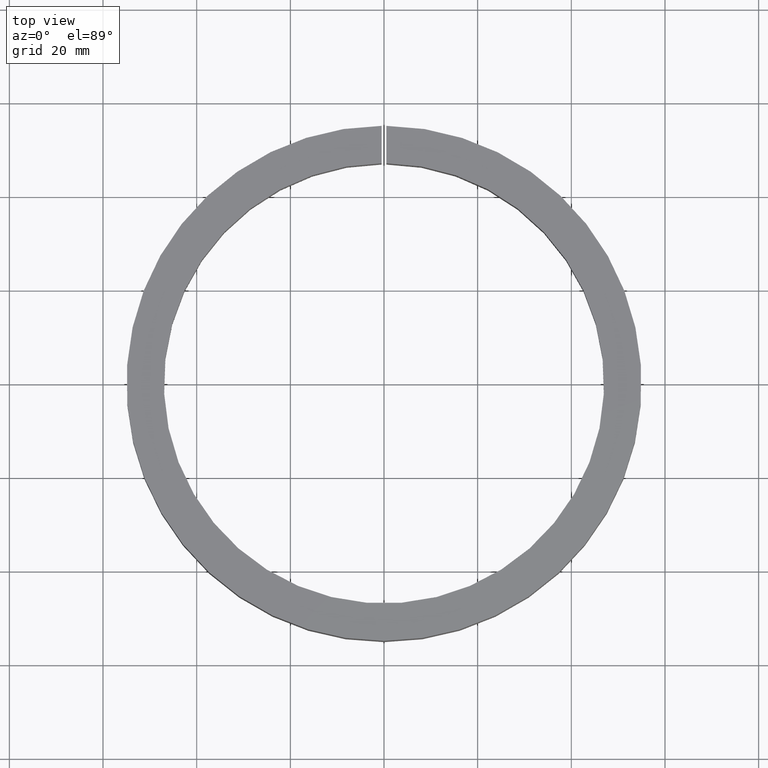
[diagram: clean part render]
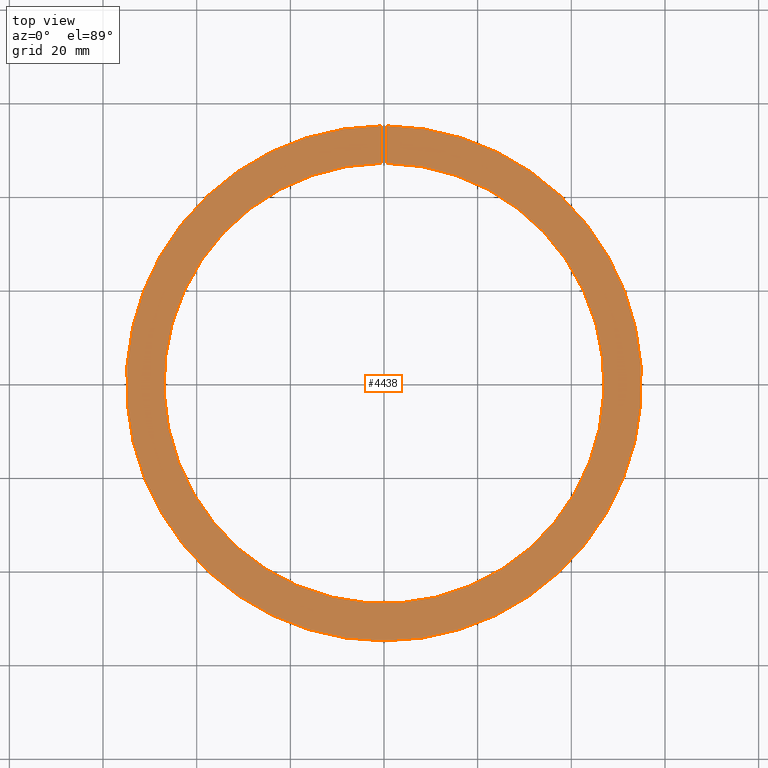
[diagram: same view with one face highlighted and labeled with its STEP entity id]
A machine part, top view. The second image highlights one B-rep face of the part: STEP entity #4438.
In plain terms, the highlighted planar face has unit normal (-0, 0, -1).
Its self-contained STEP definition (entity closure, byte-faithful):
#136 = DIRECTION ( 'NONE',  ( 0.0000000000000000000, 1.000000000000000000, -0.0000000000000000000 ) ) ;
#365 = DIRECTION ( 'NONE',  ( -1.000000000000000000, 0.0000000000000000000, 0.0000000000000000000 ) ) ;
#575 = DIRECTION ( 'NONE',  ( -0.0000000000000000000, -0.0000000000000000000, -1.000000000000000000 ) ) ;
#764 = CARTESIAN_POINT ( 'NONE',  ( -0.5000000000000000000, 0.0000000000000000000, 8.000000000000001800 ) ) ;
#1016 = LINE ( 'NONE', #5862, #3234 ) ;
#1076 = CARTESIAN_POINT ( 'NONE',  ( -0.5000000000000000000, 46.99734035027940100, 8.000000000000001800 ) ) ;
#1564 = CARTESIAN_POINT ( 'NONE',  ( 0.0000000000000000000, 0.0000000000000000000, 8.000000000000001800 ) ) ;
#2236 = VECTOR ( 'NONE', #3444, 1000.000000000000000 ) ;
#2564 = DIRECTION ( 'NONE',  ( -1.000000000000000000, 0.0000000000000000000, 0.0000000000000000000 ) ) ;
#2883 = AXIS2_PLACEMENT_3D ( 'NONE', #4982, #5932, #365 ) ;
#3053 = AXIS2_PLACEMENT_3D ( 'NONE', #5944, #10491, #8747 ) ;
#3234 = VECTOR ( 'NONE', #136, 1000.000000000000000 ) ;
#3341 = CIRCLE ( 'NONE', #3053, 55.00000000000000000 ) ;
#3444 = DIRECTION ( 'NONE',  ( 0.0000000000000000000, 1.000000000000000000, -0.0000000000000000000 ) ) ;
#3867 = EDGE_CURVE ( 'NONE', #4258, #6026, #1016, .T. ) ;
#4258 = VERTEX_POINT ( 'NONE', #9649 ) ;
#4380 = ORIENTED_EDGE ( 'NONE', *, *, #9188, .T. ) ;
#4438 = ADVANCED_FACE ( 'NONE', ( #6446 ), #10642, .F. ) ;
#4506 = EDGE_LOOP ( 'NONE', ( #10134, #7812, #5454, #4380 ) ) ;
#4982 = CARTESIAN_POINT ( 'NONE',  ( 0.0000000000000000000, -47.00000000000000000, 8.000000000000000000 ) ) ;
#5329 = AXIS2_PLACEMENT_3D ( 'NONE', #1564, #575, #2564 ) ;
#5454 = ORIENTED_EDGE ( 'NONE', *, *, #11662, .T. ) ;
#5862 = CARTESIAN_POINT ( 'NONE',  ( 0.5000000000000000000, 0.0000000000000000000, 8.000000000000001800 ) ) ;
#5932 = DIRECTION ( 'NONE',  ( -0.0000000000000000000, 0.0000000000000000000, -1.000000000000000000 ) ) ;
#5944 = CARTESIAN_POINT ( 'NONE',  ( 0.0000000000000000000, 0.0000000000000000000, 8.000000000000000000 ) ) ;
#5990 = EDGE_CURVE ( 'NONE', #6026, #10108, #3341, .T. ) ;
#6026 = VERTEX_POINT ( 'NONE', #6837 ) ;
#6446 = FACE_OUTER_BOUND ( 'NONE', #4506, .T. ) ;
#6837 = CARTESIAN_POINT ( 'NONE',  ( 0.5000000000000000000, 54.99772722576815900, 8.000000000000000000 ) ) ;
#7646 = VERTEX_POINT ( 'NONE', #1076 ) ;
#7812 = ORIENTED_EDGE ( 'NONE', *, *, #3867, .F. ) ;
#8747 = DIRECTION ( 'NONE',  ( -1.000000000000000000, 0.0000000000000000000, 0.0000000000000000000 ) ) ;
#9122 = CARTESIAN_POINT ( 'NONE',  ( -0.5000000000000000000, 54.99772722576815900, 8.000000000000001800 ) ) ;
#9188 = EDGE_CURVE ( 'NONE', #7646, #10108, #9800, .T. ) ;
#9649 = CARTESIAN_POINT ( 'NONE',  ( 0.5000000000000000000, 46.99734035027940100, 8.000000000000001800 ) ) ;
#9800 = LINE ( 'NONE', #764, #2236 ) ;
#10108 = VERTEX_POINT ( 'NONE', #9122 ) ;
#10134 = ORIENTED_EDGE ( 'NONE', *, *, #5990, .F. ) ;
#10491 = DIRECTION ( 'NONE',  ( -0.0000000000000000000, -0.0000000000000000000, -1.000000000000000000 ) ) ;
#10578 = CIRCLE ( 'NONE', #5329, 47.00000000000000000 ) ;
#10642 = PLANE ( 'NONE',  #2883 ) ;
#11662 = EDGE_CURVE ( 'NONE', #4258, #7646, #10578, .T. ) ;